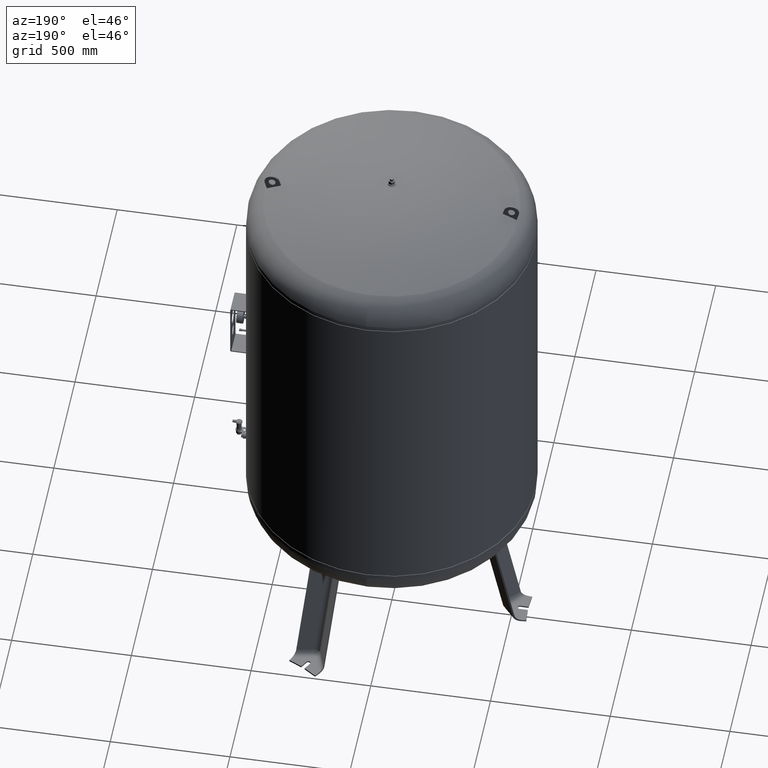
[diagram: clean part render]
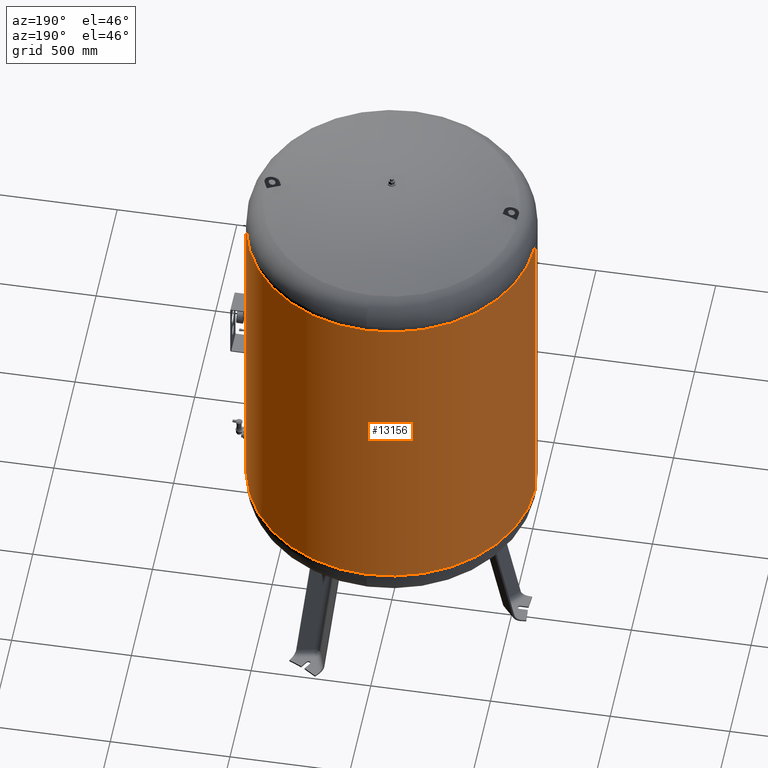
[diagram: same view with one face highlighted and labeled with its STEP entity id]
A machine part, auxiliary view. The second image highlights one B-rep face of the part: STEP entity #13156.
In plain terms, the highlighted cylindrical surface (partial cylindrical patch) has radius 600 mm, axis along (0, 0, 1).
Its self-contained STEP definition (entity closure, byte-faithful):
#13036=CARTESIAN_POINT('',(600.000000000000800,0.0,2161.0));
#13037=VERTEX_POINT('',#13036);
#13038=CARTESIAN_POINT('',(600.0,0.0,716.999999999999660));
#13039=VERTEX_POINT('',#13038);
#13040=CARTESIAN_POINT('',(600.000000000000800,0.0,2161.0));
#13041=DIRECTION('',(0.0,0.0,-1.0));
#13042=VECTOR('',#13041,1444.000000000000500);
#13043=LINE('',#13040,#13042);
#13044=EDGE_CURVE('',#13037,#13039,#13043,.T.);
#13046=CARTESIAN_POINT('',(-600.000000000000570,-7.347638E-014,2161.0));
#13047=VERTEX_POINT('',#13046);
#13055=CARTESIAN_POINT('',(-599.999999999999890,-7.347638E-014,716.999999999999660));
#13056=VERTEX_POINT('',#13055);
#13057=CARTESIAN_POINT('',(-600.000000000000570,-7.347638E-014,2161.0));
#13058=DIRECTION('',(0.0,0.0,-1.0));
#13059=VECTOR('',#13058,1444.000000000000500);
#13060=LINE('',#13057,#13059);
#13061=EDGE_CURVE('',#13047,#13056,#13060,.T.);
#13129=CARTESIAN_POINT('',(-1.661891E-014,0.0,716.999999999999550));
#13130=DIRECTION('',(0.0,0.0,1.0));
#13131=DIRECTION('',(1.0,0.0,0.0));
#13132=AXIS2_PLACEMENT_3D('',#13129,#13130,#13131);
#13133=CIRCLE('',#13132,600.0);
#13134=EDGE_CURVE('',#13039,#13056,#13133,.T.);
#13139=CARTESIAN_POINT('',(8.309455E-015,0.0,1800.0));
#13140=DIRECTION('',(2.301788E-017,0.0,1.0));
#13141=DIRECTION('',(1.0,0.0,0.0));
#13142=AXIS2_PLACEMENT_3D('',#13139,#13140,#13141);
#13143=CYLINDRICAL_SURFACE('',#13142,600.000000000000570);
#13144=ORIENTED_EDGE('',*,*,#13044,.T.);
#13145=ORIENTED_EDGE('',*,*,#13134,.T.);
#13146=ORIENTED_EDGE('',*,*,#13061,.F.);
#13147=CARTESIAN_POINT('',(1.661891E-014,0.0,2161.0));
#13148=DIRECTION('',(0.0,0.0,1.0));
#13149=DIRECTION('',(1.0,0.0,0.0));
#13150=AXIS2_PLACEMENT_3D('',#13147,#13148,#13149);
#13151=CIRCLE('',#13150,600.000000000000800);
#13152=EDGE_CURVE('',#13037,#13047,#13151,.T.);
#13153=ORIENTED_EDGE('',*,*,#13152,.F.);
#13154=EDGE_LOOP('',(#13144,#13145,#13146,#13153));
#13155=FACE_OUTER_BOUND('',#13154,.T.);
#13156=ADVANCED_FACE('',(#13155),#13143,.T.);